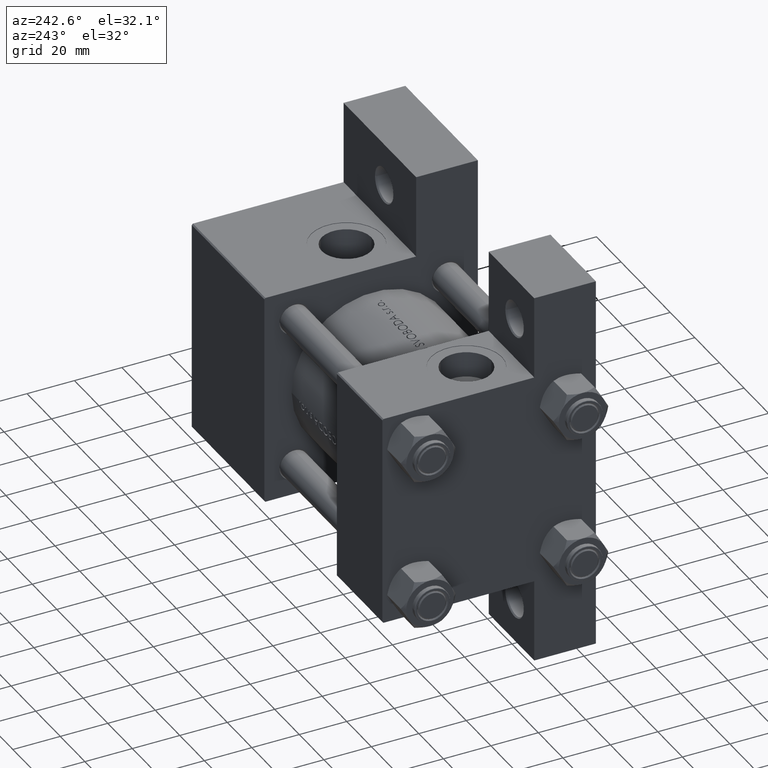
[diagram: clean part render]
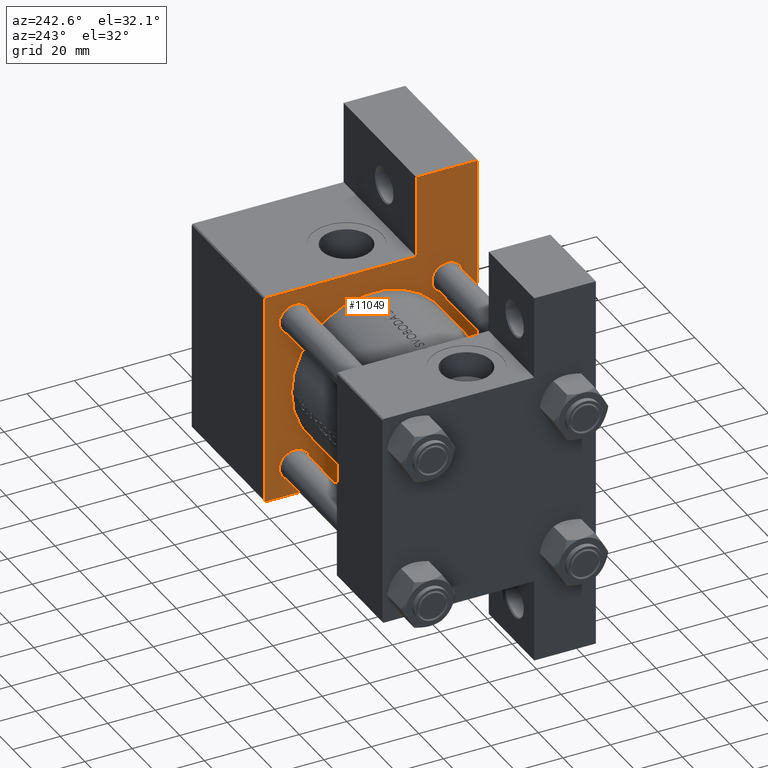
[diagram: same view with one face highlighted and labeled with its STEP entity id]
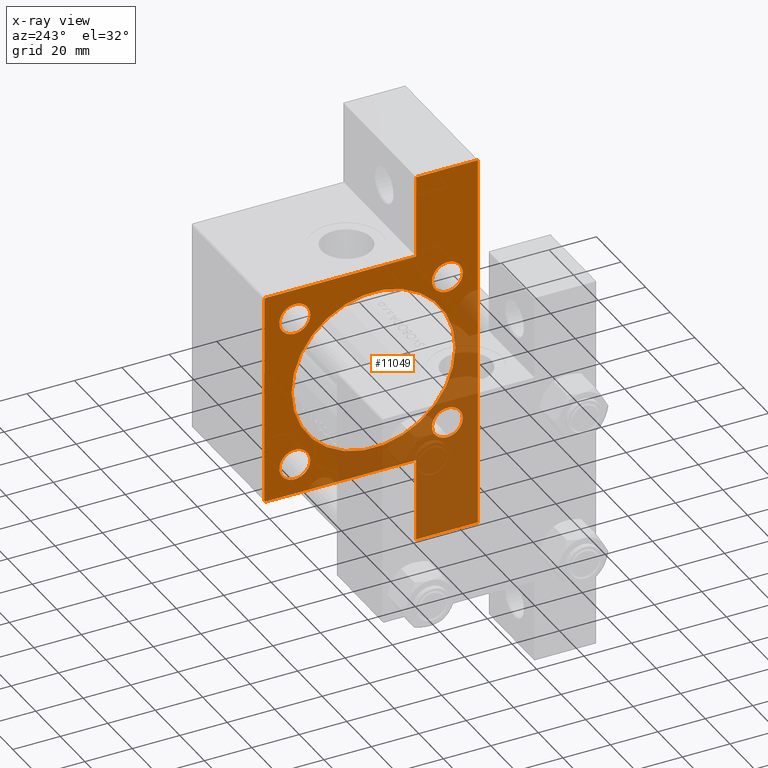
[diagram: x-ray of the same camera — body ghosted, the highlighted face saturated]
A machine part, auxiliary view. The second image highlights one B-rep face of the part: STEP entity #11049.
The next image is the same camera in x-ray: the body ghosted, the highlighted face saturated — about 39% of this face is hidden behind the body in this view.
In plain terms, the highlighted planar face has unit normal (-1, 0, -0).
Its self-contained STEP definition (entity closure, byte-faithful):
#112 = FACE_OUTER_BOUND ( 'NONE', #27392, .T. ) ;
#828 = VERTEX_POINT ( 'NONE', #13173 ) ;
#1023 = LINE ( 'NONE', #19854, #3212 ) ;
#1036 = ORIENTED_EDGE ( 'NONE', *, *, #28049, .T. ) ;
#1269 = ORIENTED_EDGE ( 'NONE', *, *, #35307, .T. ) ;
#1328 = DIRECTION ( 'NONE',  ( 0.000000000000000000, -1.000000000000000000, 0.000000000000000000 ) ) ;
#1552 = EDGE_CURVE ( 'NONE', #22503, #26968, #39558, .T. ) ;
#2018 = CIRCLE ( 'NONE', #9259, 6.500000000000012434 ) ;
#2100 = EDGE_CURVE ( 'NONE', #41299, #8019, #15364, .T. ) ;
#2892 = VERTEX_POINT ( 'NONE', #32718 ) ;
#2950 = LINE ( 'NONE', #41115, #15816 ) ;
#2964 = CARTESIAN_POINT ( 'NONE',  ( 96.00000000000000000, -32.14999999999997726, 32.15000000000001279 ) ) ;
#3172 = VECTOR ( 'NONE', #1328, 1000.000000000000000 ) ;
#3210 = DIRECTION ( 'NONE',  ( 0.000000000000000000, 0.000000000000000000, 1.000000000000000000 ) ) ;
#3212 = VECTOR ( 'NONE', #35157, 1000.000000000000114 ) ;
#3445 = ORIENTED_EDGE ( 'NONE', *, *, #2100, .T. ) ;
#3512 = VECTOR ( 'NONE', #14367, 1000.000000000000000 ) ;
#3847 = EDGE_CURVE ( 'NONE', #41299, #28864, #46201, .T. ) ;
#4284 = DIRECTION ( 'NONE',  ( 0.000000000000000000, 7.709882115452478166E-17, -1.000000000000000000 ) ) ;
#4672 = DIRECTION ( 'NONE',  ( 0.000000000000000000, 0.000000000000000000, -1.000000000000000000 ) ) ;
#4966 = VERTEX_POINT ( 'NONE', #6789 ) ;
#4993 = CARTESIAN_POINT ( 'NONE',  ( 96.00000000000000000, 79.99999999999998579, -19.00000000000000000 ) ) ;
#5232 = DIRECTION ( 'NONE',  ( 1.000000000000000000, 0.000000000000000000, 0.000000000000000000 ) ) ;
#5341 = VERTEX_POINT ( 'NONE', #47315 ) ;
#5457 = AXIS2_PLACEMENT_3D ( 'NONE', #19228, #26787, #23002 ) ;
#5819 = ORIENTED_EDGE ( 'NONE', *, *, #47227, .T. ) ;
#6073 = CARTESIAN_POINT ( 'NONE',  ( 96.00000000000000000, 45.00000000000001421, 44.50000000000000000 ) ) ;
#6789 = CARTESIAN_POINT ( 'NONE',  ( 96.00000000000000000, -32.14999999999997726, 25.64999999999999858 ) ) ;
#7382 = ORIENTED_EDGE ( 'NONE', *, *, #21440, .T. ) ;
#7817 = VERTEX_POINT ( 'NONE', #48092 ) ;
#7823 = CARTESIAN_POINT ( 'NONE',  ( 96.00000000000000000, -44.74999999999999289, 44.74999999999999289 ) ) ;
#7895 = FACE_BOUND ( 'NONE', #11222, .T. ) ;
#8019 = VERTEX_POINT ( 'NONE', #23480 ) ;
#8141 = FACE_BOUND ( 'NONE', #38066, .T. ) ;
#8411 = DIRECTION ( 'NONE',  ( 1.000000000000000000, 0.000000000000000000, 0.000000000000000000 ) ) ;
#8637 = VERTEX_POINT ( 'NONE', #32309 ) ;
#9124 = CIRCLE ( 'NONE', #32386, 6.499999999999999112 ) ;
#9246 = ORIENTED_EDGE ( 'NONE', *, *, #30669, .T. ) ;
#9259 = AXIS2_PLACEMENT_3D ( 'NONE', #34934, #46977, #39450 ) ;
#9349 = CARTESIAN_POINT ( 'NONE',  ( 96.00000000000000000, -32.14999999999997726, -38.65000000000002700 ) ) ;
#9594 = DIRECTION ( 'NONE',  ( 0.000000000000000000, 0.000000000000000000, -1.000000000000000000 ) ) ;
#10310 = ORIENTED_EDGE ( 'NONE', *, *, #49230, .T. ) ;
#10729 = CARTESIAN_POINT ( 'NONE',  ( 96.00000000000000000, -32.14999999999997726, -32.15000000000001279 ) ) ;
#11049 = ADVANCED_FACE ( 'NONE', ( #8141, #23463, #7895, #37796, #11659, #112 ), #26999, .T. ) ;
#11222 = EDGE_LOOP ( 'NONE', ( #19973, #31897 ) ) ;
#11228 = CIRCLE ( 'NONE', #28069, 6.500000000000012434 ) ;
#11364 = DIRECTION ( 'NONE',  ( 3.965082230804131699E-16, 1.000000000000000000, 0.000000000000000000 ) ) ;
#11439 = EDGE_LOOP ( 'NONE', ( #1269, #26072 ) ) ;
#11659 = FACE_BOUND ( 'NONE', #19301, .T. ) ;
#11698 = DIRECTION ( 'NONE',  ( 0.000000000000000000, 0.000000000000000000, 1.000000000000000000 ) ) ;
#12716 = CARTESIAN_POINT ( 'NONE',  ( 95.99999999999998579, -79.99999999999998579, -45.00000000000000000 ) ) ;
#13039 = VERTEX_POINT ( 'NONE', #27812 ) ;
#13173 = CARTESIAN_POINT ( 'NONE',  ( 96.00000000000000000, 32.14999999999999147, 38.65000000000001279 ) ) ;
#13356 = VERTEX_POINT ( 'NONE', #23736 ) ;
#13816 = ORIENTED_EDGE ( 'NONE', *, *, #3847, .F. ) ;
#14335 = CARTESIAN_POINT ( 'NONE',  ( 96.00000000000000000, 32.14999999999999147, -25.64999999999999147 ) ) ;
#14367 = DIRECTION ( 'NONE',  ( 0.000000000000000000, -1.000000000000000000, -1.541976423090495140E-16 ) ) ;
#14682 = EDGE_CURVE ( 'NONE', #2892, #8019, #29444, .T. ) ;
#14992 = ORIENTED_EDGE ( 'NONE', *, *, #48157, .T. ) ;
#15110 = CIRCLE ( 'NONE', #34352, 6.500000000000012434 ) ;
#15136 = LINE ( 'NONE', #23162, #30149 ) ;
#15266 = VECTOR ( 'NONE', #48768, 1000.000000000000114 ) ;
#15364 = LINE ( 'NONE', #7823, #15266 ) ;
#15816 = VECTOR ( 'NONE', #25043, 1000.000000000000000 ) ;
#15931 = EDGE_CURVE ( 'NONE', #41742, #13039, #43989, .T. ) ;
#16674 = CIRCLE ( 'NONE', #5457, 6.500000000000012434 ) ;
#17001 = AXIS2_PLACEMENT_3D ( 'NONE', #42285, #38046, #30759 ) ;
#17357 = CARTESIAN_POINT ( 'NONE',  ( 96.00000000000000000, 32.14999999999999147, 32.15000000000000568 ) ) ;
#17410 = VECTOR ( 'NONE', #9594, 1000.000000000000000 ) ;
#18745 = DIRECTION ( 'NONE',  ( 0.000000000000000000, 0.000000000000000000, -1.000000000000000000 ) ) ;
#18755 = ORIENTED_EDGE ( 'NONE', *, *, #37456, .T. ) ;
#19002 = VERTEX_POINT ( 'NONE', #14335 ) ;
#19228 = CARTESIAN_POINT ( 'NONE',  ( 96.00000000000000000, 32.14999999999999147, -32.15000000000000568 ) ) ;
#19301 = EDGE_LOOP ( 'NONE', ( #18755, #1036 ) ) ;
#19317 = ORIENTED_EDGE ( 'NONE', *, *, #14682, .F. ) ;
#19653 = ORIENTED_EDGE ( 'NONE', *, *, #1552, .F. ) ;
#19854 = CARTESIAN_POINT ( 'NONE',  ( 96.00000000000000000, 44.75000000000001421, 44.75000000000001421 ) ) ;
#19973 = ORIENTED_EDGE ( 'NONE', *, *, #36694, .T. ) ;
#20752 = CIRCLE ( 'NONE', #27182, 6.500000000000012434 ) ;
#20910 = LINE ( 'NONE', #35727, #3172 ) ;
#21364 = VERTEX_POINT ( 'NONE', #33555 ) ;
#21440 = EDGE_CURVE ( 'NONE', #22877, #7817, #48860, .T. ) ;
#21571 = DIRECTION ( 'NONE',  ( 0.000000000000000000, 0.000000000000000000, 1.000000000000000000 ) ) ;
#22326 = AXIS2_PLACEMENT_3D ( 'NONE', #46562, #8411, #39031 ) ;
#22503 = VERTEX_POINT ( 'NONE', #31504 ) ;
#22847 = EDGE_CURVE ( 'NONE', #5341, #828, #9124, .T. ) ;
#22877 = VERTEX_POINT ( 'NONE', #6073 ) ;
#23002 = DIRECTION ( 'NONE',  ( 0.000000000000000000, 0.000000000000000000, 1.000000000000000000 ) ) ;
#23162 = CARTESIAN_POINT ( 'NONE',  ( 95.99999999999998579, -79.99999999999998579, -19.00000000000000000 ) ) ;
#23463 = FACE_BOUND ( 'NONE', #11439, .T. ) ;
#23480 = CARTESIAN_POINT ( 'NONE',  ( 96.00000000000000000, -44.49999999999997158, 44.99999999999998579 ) ) ;
#23736 = CARTESIAN_POINT ( 'NONE',  ( 96.00000000000000000, 0.000000000000000000, 33.49999999999998579 ) ) ;
#24841 = ORIENTED_EDGE ( 'NONE', *, *, #33332, .T. ) ;
#25043 = DIRECTION ( 'NONE',  ( -0.000000000000000000, 1.000000000000000000, -0.000000000000000000 ) ) ;
#25526 = DIRECTION ( 'NONE',  ( 0.000000000000000000, 0.000000000000000000, -1.000000000000000000 ) ) ;
#25915 = DIRECTION ( 'NONE',  ( 1.000000000000000000, 0.000000000000000000, 0.000000000000000000 ) ) ;
#26072 = ORIENTED_EDGE ( 'NONE', *, *, #22847, .T. ) ;
#26480 = ORIENTED_EDGE ( 'NONE', *, *, #30606, .T. ) ;
#26787 = DIRECTION ( 'NONE',  ( 1.000000000000000000, 0.000000000000000000, 0.000000000000000000 ) ) ;
#26899 = CARTESIAN_POINT ( 'NONE',  ( 96.00000000000000000, 32.14999999999999147, -38.65000000000001990 ) ) ;
#26968 = VERTEX_POINT ( 'NONE', #12716 ) ;
#26999 = PLANE ( 'NONE',  #17001 ) ;
#27047 = ORIENTED_EDGE ( 'NONE', *, *, #15931, .T. ) ;
#27064 = AXIS2_PLACEMENT_3D ( 'NONE', #47738, #32950, #40218 ) ;
#27182 = AXIS2_PLACEMENT_3D ( 'NONE', #2964, #33597, #3210 ) ;
#27392 = EDGE_LOOP ( 'NONE', ( #19317, #10310, #7382, #39608, #27047, #5819, #19653, #26480, #13816, #3445 ) ) ;
#27812 = CARTESIAN_POINT ( 'NONE',  ( 96.00000000000000000, 79.99999999999998579, -45.00000000000000000 ) ) ;
#28049 = EDGE_CURVE ( 'NONE', #41639, #13356, #41257, .T. ) ;
#28069 = AXIS2_PLACEMENT_3D ( 'NONE', #10729, #49140, #11698 ) ;
#28864 = VERTEX_POINT ( 'NONE', #47680 ) ;
#29444 = LINE ( 'NONE', #44497, #3512 ) ;
#30103 = CARTESIAN_POINT ( 'NONE',  ( 96.00000000000000000, -32.14999999999997726, 32.15000000000001279 ) ) ;
#30146 = ORIENTED_EDGE ( 'NONE', *, *, #46868, .T. ) ;
#30149 = VECTOR ( 'NONE', #11364, 1000.000000000000000 ) ;
#30606 = EDGE_CURVE ( 'NONE', #22503, #28864, #15136, .T. ) ;
#30669 = EDGE_CURVE ( 'NONE', #21364, #36184, #2018, .T. ) ;
#30759 = DIRECTION ( 'NONE',  ( -0.000000000000000000, 0.000000000000000000, 1.000000000000000000 ) ) ;
#31504 = CARTESIAN_POINT ( 'NONE',  ( 95.99999999999998579, -79.99999999999998579, -19.00000000000000000 ) ) ;
#31766 = VERTEX_POINT ( 'NONE', #26899 ) ;
#31897 = ORIENTED_EDGE ( 'NONE', *, *, #37431, .T. ) ;
#32309 = CARTESIAN_POINT ( 'NONE',  ( 96.00000000000000000, -32.14999999999997726, 38.65000000000002700 ) ) ;
#32386 = AXIS2_PLACEMENT_3D ( 'NONE', #17357, #25915, #37207 ) ;
#32718 = CARTESIAN_POINT ( 'NONE',  ( 96.00000000000000000, 44.50000000000001421, 45.00000000000000000 ) ) ;
#32950 = DIRECTION ( 'NONE',  ( 1.000000000000000000, 0.000000000000000000, 0.000000000000000000 ) ) ;
#33332 = EDGE_CURVE ( 'NONE', #8637, #4966, #38232, .T. ) ;
#33415 = EDGE_LOOP ( 'NONE', ( #9246, #14992 ) ) ;
#33555 = CARTESIAN_POINT ( 'NONE',  ( 96.00000000000000000, -32.14999999999997726, -25.64999999999999858 ) ) ;
#33597 = DIRECTION ( 'NONE',  ( 1.000000000000000000, 0.000000000000000000, 0.000000000000000000 ) ) ;
#34060 = DIRECTION ( 'NONE',  ( 1.000000000000000000, 0.000000000000000000, 0.000000000000000000 ) ) ;
#34352 = AXIS2_PLACEMENT_3D ( 'NONE', #35348, #5232, #35097 ) ;
#34895 = CARTESIAN_POINT ( 'NONE',  ( 96.00000000000000000, -45.00000000000000000, 44.99999999999998579 ) ) ;
#34934 = CARTESIAN_POINT ( 'NONE',  ( 96.00000000000000000, -32.14999999999997726, -32.15000000000001279 ) ) ;
#35097 = DIRECTION ( 'NONE',  ( 0.000000000000000000, 0.000000000000000000, 1.000000000000000000 ) ) ;
#35157 = DIRECTION ( 'NONE',  ( 0.000000000000000000, 0.7071067811865474617, -0.7071067811865474617 ) ) ;
#35307 = EDGE_CURVE ( 'NONE', #828, #5341, #44683, .T. ) ;
#35348 = CARTESIAN_POINT ( 'NONE',  ( 96.00000000000000000, 32.14999999999999147, -32.15000000000000568 ) ) ;
#35543 = CARTESIAN_POINT ( 'NONE',  ( 95.99999999999998579, -79.99999999999998579, -19.00000000000000000 ) ) ;
#35727 = CARTESIAN_POINT ( 'NONE',  ( 96.00000000000000000, 45.00000000000001421, -45.00000000000000000 ) ) ;
#36184 = VERTEX_POINT ( 'NONE', #9349 ) ;
#36221 = CARTESIAN_POINT ( 'NONE',  ( 96.00000000000000000, 79.99999999999998579, -19.00000000000000000 ) ) ;
#36694 = EDGE_CURVE ( 'NONE', #19002, #31766, #15110, .T. ) ;
#37207 = DIRECTION ( 'NONE',  ( 0.000000000000000000, 0.000000000000000000, 1.000000000000000000 ) ) ;
#37431 = EDGE_CURVE ( 'NONE', #31766, #19002, #16674, .T. ) ;
#37456 = EDGE_CURVE ( 'NONE', #13356, #41639, #45581, .T. ) ;
#37668 = VECTOR ( 'NONE', #4672, 1000.000000000000000 ) ;
#37796 = FACE_BOUND ( 'NONE', #33415, .T. ) ;
#38046 = DIRECTION ( 'NONE',  ( -1.000000000000000000, 0.000000000000000000, -0.000000000000000000 ) ) ;
#38066 = EDGE_LOOP ( 'NONE', ( #24841, #30146 ) ) ;
#38232 = CIRCLE ( 'NONE', #48660, 6.500000000000012434 ) ;
#38482 = EDGE_CURVE ( 'NONE', #7817, #41742, #2950, .T. ) ;
#38554 = CARTESIAN_POINT ( 'NONE',  ( 96.00000000000000000, 0.000000000000000000, -1.000000000000007772 ) ) ;
#38797 = AXIS2_PLACEMENT_3D ( 'NONE', #38554, #34060, #18745 ) ;
#39031 = DIRECTION ( 'NONE',  ( 0.000000000000000000, 0.000000000000000000, -1.000000000000000000 ) ) ;
#39328 = VECTOR ( 'NONE', #4284, 1000.000000000000000 ) ;
#39450 = DIRECTION ( 'NONE',  ( 0.000000000000000000, 0.000000000000000000, 1.000000000000000000 ) ) ;
#39558 = LINE ( 'NONE', #35543, #37668 ) ;
#39608 = ORIENTED_EDGE ( 'NONE', *, *, #38482, .T. ) ;
#40218 = DIRECTION ( 'NONE',  ( 0.000000000000000000, 0.000000000000000000, 1.000000000000000000 ) ) ;
#41115 = CARTESIAN_POINT ( 'NONE',  ( 96.00000000000000000, 79.99999999999998579, -19.00000000000000000 ) ) ;
#41257 = CIRCLE ( 'NONE', #38797, 34.49999999999999289 ) ;
#41299 = VERTEX_POINT ( 'NONE', #45269 ) ;
#41639 = VERTEX_POINT ( 'NONE', #45693 ) ;
#41742 = VERTEX_POINT ( 'NONE', #4993 ) ;
#42285 = CARTESIAN_POINT ( 'NONE',  ( 96.00000000000000000, 0.000000000000000000, 0.000000000000000000 ) ) ;
#43989 = LINE ( 'NONE', #36221, #17410 ) ;
#44346 = CARTESIAN_POINT ( 'NONE',  ( 96.00000000000000000, 45.00000000000001421, 45.00000000000000000 ) ) ;
#44497 = CARTESIAN_POINT ( 'NONE',  ( 96.00000000000000000, 45.00000000000001421, 45.00000000000000000 ) ) ;
#44683 = CIRCLE ( 'NONE', #27064, 6.499999999999999112 ) ;
#45174 = VECTOR ( 'NONE', #25526, 1000.000000000000000 ) ;
#45269 = CARTESIAN_POINT ( 'NONE',  ( 96.00000000000000000, -45.00000000000000000, 44.49999999999998579 ) ) ;
#45581 = CIRCLE ( 'NONE', #22326, 34.49999999999999289 ) ;
#45693 = CARTESIAN_POINT ( 'NONE',  ( 96.00000000000000000, 4.225031457058367344E-15, -35.50000000000000711 ) ) ;
#46201 = LINE ( 'NONE', #34895, #39328 ) ;
#46562 = CARTESIAN_POINT ( 'NONE',  ( 96.00000000000000000, 0.000000000000000000, -1.000000000000007772 ) ) ;
#46868 = EDGE_CURVE ( 'NONE', #4966, #8637, #20752, .T. ) ;
#46977 = DIRECTION ( 'NONE',  ( 1.000000000000000000, 0.000000000000000000, 0.000000000000000000 ) ) ;
#47227 = EDGE_CURVE ( 'NONE', #13039, #26968, #20910, .T. ) ;
#47315 = CARTESIAN_POINT ( 'NONE',  ( 96.00000000000000000, 32.14999999999999147, 25.65000000000000213 ) ) ;
#47680 = CARTESIAN_POINT ( 'NONE',  ( 96.00000000000000000, -45.00000000000000000, -19.00000000000000000 ) ) ;
#47738 = CARTESIAN_POINT ( 'NONE',  ( 96.00000000000000000, 32.14999999999999147, 32.15000000000000568 ) ) ;
#48092 = CARTESIAN_POINT ( 'NONE',  ( 96.00000000000000000, 45.00000000000001421, -18.99999999999997513 ) ) ;
#48157 = EDGE_CURVE ( 'NONE', #36184, #21364, #11228, .T. ) ;
#48660 = AXIS2_PLACEMENT_3D ( 'NONE', #30103, #49178, #21571 ) ;
#48768 = DIRECTION ( 'NONE',  ( -0.000000000000000000, 0.7071067811865474617, 0.7071067811865474617 ) ) ;
#48860 = LINE ( 'NONE', #44346, #45174 ) ;
#49140 = DIRECTION ( 'NONE',  ( 1.000000000000000000, 0.000000000000000000, 0.000000000000000000 ) ) ;
#49178 = DIRECTION ( 'NONE',  ( 1.000000000000000000, 0.000000000000000000, 0.000000000000000000 ) ) ;
#49230 = EDGE_CURVE ( 'NONE', #2892, #22877, #1023, .T. ) ;